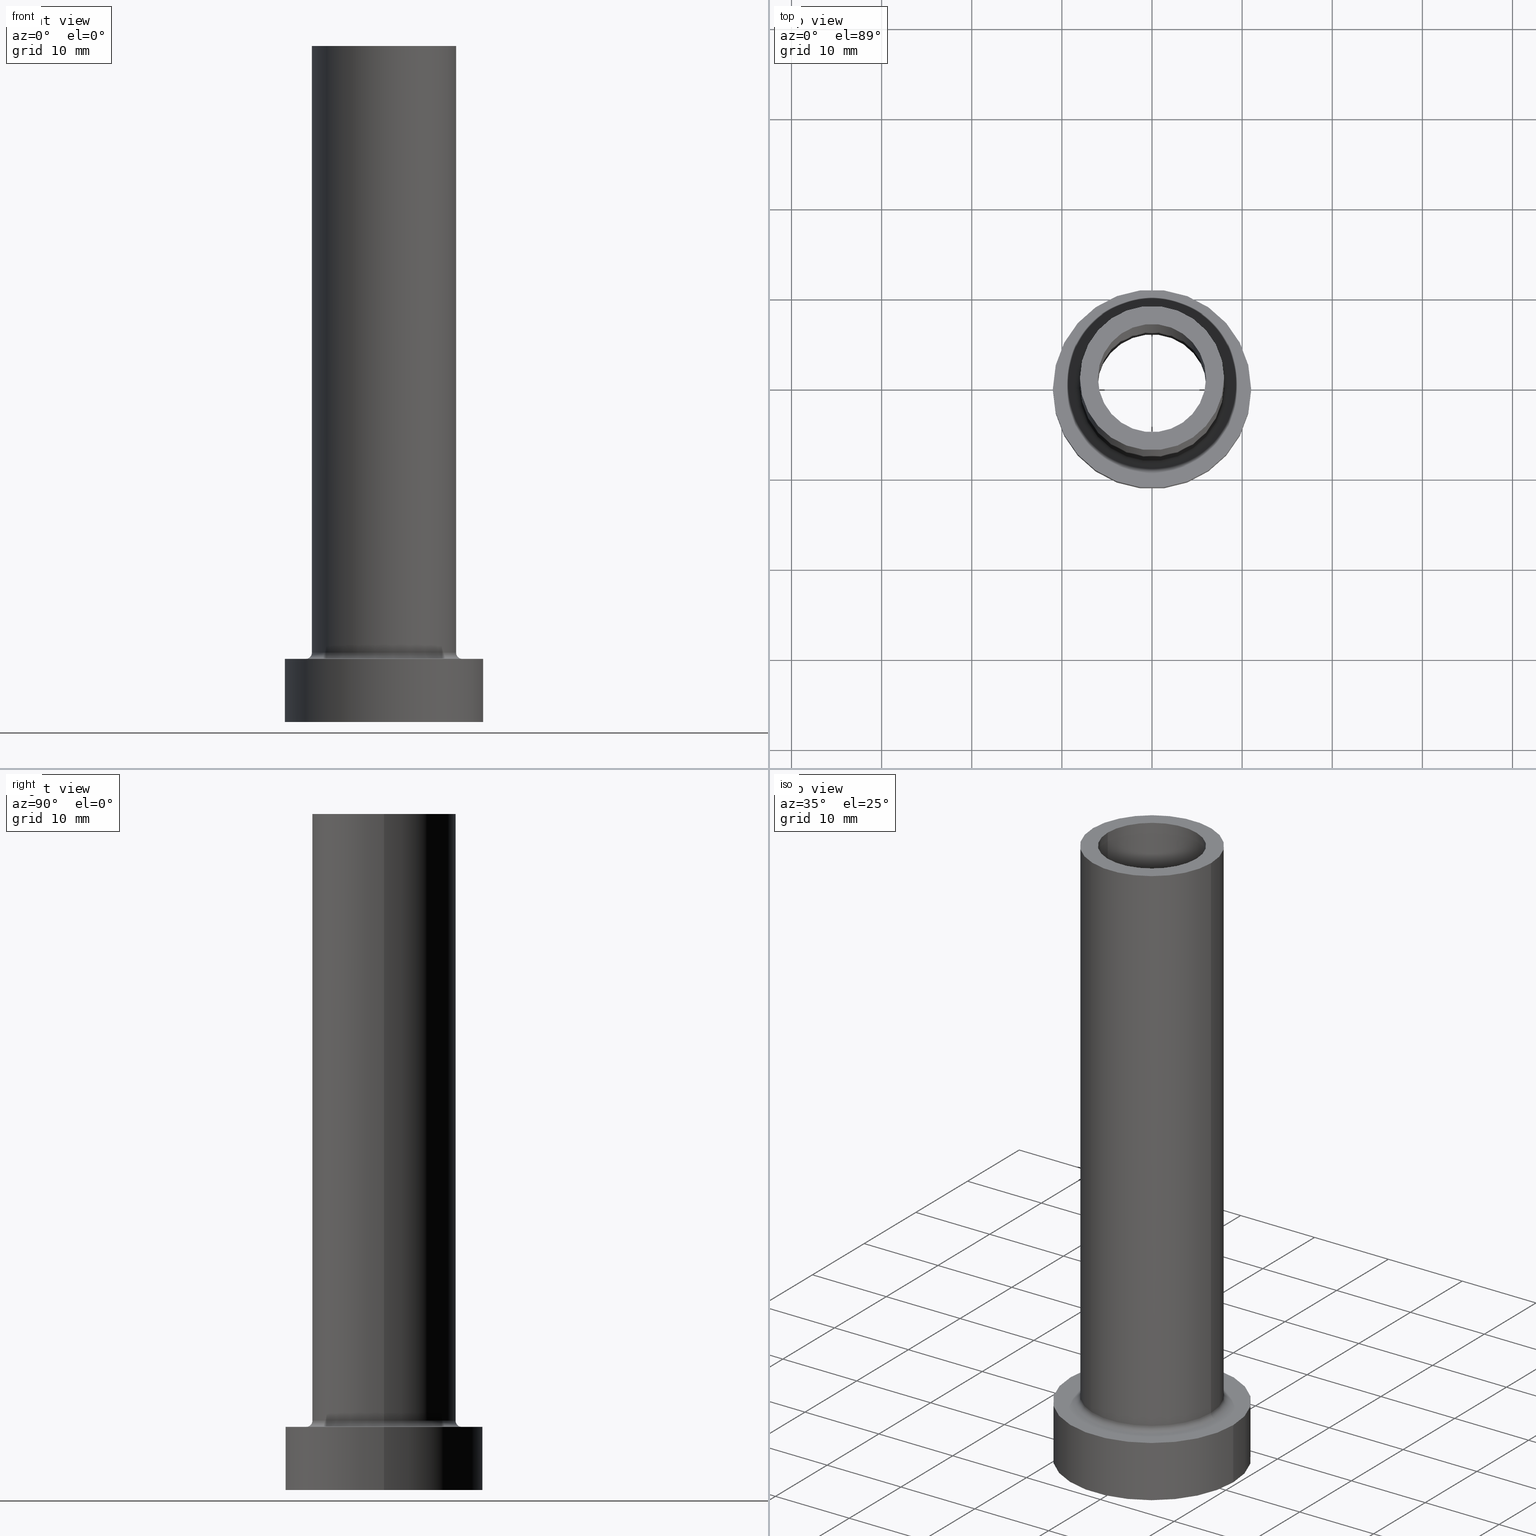
[diagram: canonical four-view strip — front | top / right | iso, engineering-drawing reading convention]
A machine part, canonical four-view strip (front | top / right | iso — engineering-drawing reading convention). The complete STEP part file that produces these views, byte-faithful:
ISO-10303-21;
HEADER;
FILE_DESCRIPTION (( 'STEP AP203' ),
    '1' );
FILE_NAME ('388b.STEP',
    '2023-02-13T09:09:16',
    ( '' ),
    ( '' ),
    'SwSTEP 2.0',
    'SolidWorks 2019',
    '' );
FILE_SCHEMA (( 'CONFIG_CONTROL_DESIGN' ));
ENDSEC;

DATA;
#1 = FACE_OUTER_BOUND ( 'NONE', #94, .T. ) ;
#2 = DIRECTION ( 'NONE',  ( 0.000000000000000000, 0.000000000000000000, 1.000000000000000000 ) ) ;
#3 = LOCAL_TIME ( 10, 9, 16.00000000000000000, #82 ) ;
#4 = CARTESIAN_POINT ( 'NONE',  ( 0.000000000000000000, 0.000000000000000000, 75.00000000000001421 ) ) ;
#5 = ADVANCED_FACE ( 'NONE', ( #203 ), #129, .T. ) ;
#6 = CLOSED_SHELL ( 'NONE', ( #361, #292, #395, #155, #5, #280, #20, #250, #79, #368, #174, #99, #85, #138 ) ) ;
#7 = CIRCLE ( 'NONE', #222, 6.150000000000000355 ) ;
#8 = SECURITY_CLASSIFICATION_LEVEL ( 'unclassified' ) ;
#9 = EDGE_LOOP ( 'NONE', ( #124, #411 ) ) ;
#10 = PRODUCT ( '388b', '388b', '', ( #120 ) ) ;
#11 = EDGE_LOOP ( 'NONE', ( #323, #55 ) ) ;
#12 = CC_DESIGN_PERSON_AND_ORGANIZATION_ASSIGNMENT ( #364, #252, ( #154 ) ) ;
#13 = DATE_AND_TIME ( #285, #56 ) ;
#14 = VECTOR ( 'NONE', #307, 1000.000000000000000 ) ;
#15 = ORIENTED_EDGE ( 'NONE', *, *, #137, .T. ) ;
#16 = AXIS2_PLACEMENT_3D ( 'NONE', #272, #172, #144 ) ;
#17 = PERSON_AND_ORGANIZATION ( #304, #435 ) ;
#18 = ORIENTED_EDGE ( 'NONE', *, *, #115, .F. ) ;
#19 = ORIENTED_EDGE ( 'NONE', *, *, #329, .T. ) ;
#20 = ADVANCED_FACE ( 'NONE', ( #50, #61 ), #159, .T. ) ;
#21 = DIRECTION ( 'NONE',  ( 1.000000000000000000, 0.000000000000000000, 0.000000000000000000 ) ) ;
#22 = AXIS2_PLACEMENT_3D ( 'NONE', #337, #27, #29 ) ;
#23 = ORIENTED_EDGE ( 'NONE', *, *, #169, .T. ) ;
#24 = CYLINDRICAL_SURFACE ( 'NONE', #44, 11.00000000000000000 ) ;
#25 = VERTEX_POINT ( 'NONE', #244 ) ;
#26 = DIRECTION ( 'NONE',  ( 0.000000000000000000, 0.000000000000000000, 1.000000000000000000 ) ) ;
#27 = DIRECTION ( 'NONE',  ( 0.000000000000000000, 0.000000000000000000, 1.000000000000000000 ) ) ;
#28 = DIRECTION ( 'NONE',  ( 1.000000000000000000, 0.000000000000000000, 0.000000000000000000 ) ) ;
#29 = DIRECTION ( 'NONE',  ( 1.000000000000000000, 0.000000000000000000, -0.000000000000000000 ) ) ;
#30 = CARTESIAN_POINT ( 'NONE',  ( -11.00000000000000000, 0.000000000000000000, 7.000000000000000000 ) ) ;
#31 = CIRCLE ( 'NONE', #80, 11.00000000000000000 ) ;
#32 = FACE_BOUND ( 'NONE', #291, .T. ) ;
#33 = CC_DESIGN_PERSON_AND_ORGANIZATION_ASSIGNMENT ( #186, #321, ( #320 ) ) ;
#34 = CARTESIAN_POINT ( 'NONE',  ( 0.000000000000000000, 0.000000000000000000, 7.699999999999998401 ) ) ;
#35 = DIRECTION ( 'NONE',  ( 1.000000000000000000, 0.000000000000000000, 0.000000000000000000 ) ) ;
#36 = APPLICATION_PROTOCOL_DEFINITION ( 'international standard', 'config_control_design', 1994, #354 ) ;
#37 = CARTESIAN_POINT ( 'NONE',  ( 11.00000000000000000, 1.347111479062088405E-15, 7.000000000000000000 ) ) ;
#38 =( GEOMETRIC_REPRESENTATION_CONTEXT ( 3 ) GLOBAL_UNCERTAINTY_ASSIGNED_CONTEXT ( ( #190 ) ) GLOBAL_UNIT_ASSIGNED_CONTEXT ( ( #240, #383, #67 ) ) REPRESENTATION_CONTEXT ( 'NONE', 'WORKASPACE' ) );
#39 = DIRECTION ( 'NONE',  ( 0.000000000000000000, 0.000000000000000000, -1.000000000000000000 ) ) ;
#40 = EDGE_CURVE ( 'NONE', #296, #78, #64, .T. ) ;
#41 = DIRECTION ( 'NONE',  ( 1.000000000000000000, 0.000000000000000000, 0.000000000000000000 ) ) ;
#42 = APPROVAL_ROLE ( '' ) ;
#43 = ORIENTED_EDGE ( 'NONE', *, *, #137, .F. ) ;
#44 = AXIS2_PLACEMENT_3D ( 'NONE', #297, #98, #238 ) ;
#45 = COORDINATED_UNIVERSAL_TIME_OFFSET ( 1, 0, .AHEAD. ) ;
#46 = CARTESIAN_POINT ( 'NONE',  ( 0.000000000000000000, 0.000000000000000000, 0.000000000000000000 ) ) ;
#47 = CIRCLE ( 'NONE', #266, 6.000000000000000888 ) ;
#48 = CC_DESIGN_SECURITY_CLASSIFICATION ( #320, ( #154 ) ) ;
#49 = DATE_TIME_ROLE ( 'classification_date' ) ;
#50 = FACE_BOUND ( 'NONE', #237, .T. ) ;
#51 = EDGE_CURVE ( 'NONE', #116, #375, #47, .T. ) ;
#52 = DIRECTION ( 'NONE',  ( 1.000000000000000000, 0.000000000000000000, -0.000000000000000000 ) ) ;
#53 = ORIENTED_EDGE ( 'NONE', *, *, #128, .T. ) ;
#54 = DIRECTION ( 'NONE',  ( 1.000000000000000000, 0.000000000000000000, 0.000000000000000000 ) ) ;
#55 = ORIENTED_EDGE ( 'NONE', *, *, #51, .F. ) ;
#56 = LOCAL_TIME ( 10, 9, 16.00000000000000000, #146 ) ;
#57 = DIRECTION ( 'NONE',  ( 0.000000000000000000, 0.000000000000000000, -1.000000000000000000 ) ) ;
#58 = CC_DESIGN_PERSON_AND_ORGANIZATION_ASSIGNMENT ( #404, #150, ( #92 ) ) ;
#59 = VERTEX_POINT ( 'NONE', #418 ) ;
#60 = CARTESIAN_POINT ( 'NONE',  ( 8.699999999999999289, 0.000000000000000000, 6.999999999999999112 ) ) ;
#61 = FACE_OUTER_BOUND ( 'NONE', #195, .T. ) ;
#62 = LINE ( 'NONE', #132, #148 ) ;
#63 = AXIS2_PLACEMENT_3D ( 'NONE', #263, #199, #340 ) ;
#64 = LINE ( 'NONE', #104, #14 ) ;
#65 = AXIS2_PLACEMENT_3D ( 'NONE', #339, #26, #372 ) ;
#66 = DIRECTION ( 'NONE',  ( -0.000000000000000000, -0.000000000000000000, -1.000000000000000000 ) ) ;
#67 =( NAMED_UNIT ( * ) SI_UNIT ( $, .STERADIAN. ) SOLID_ANGLE_UNIT ( ) );
#68 = CARTESIAN_POINT ( 'NONE',  ( 0.000000000000000000, 0.000000000000000000, 0.000000000000000000 ) ) ;
#69 = FACE_BOUND ( 'NONE', #11, .T. ) ;
#70 = CARTESIAN_POINT ( 'NONE',  ( 0.000000000000000000, 0.000000000000000000, 47.39482681718908452 ) ) ;
#71 = AXIS2_PLACEMENT_3D ( 'NONE', #278, #344, #456 ) ;
#72 = DIRECTION ( 'NONE',  ( 0.000000000000000000, 0.000000000000000000, 1.000000000000000000 ) ) ;
#73 = AXIS2_PLACEMENT_3D ( 'NONE', #248, #457, #212 ) ;
#74 = EDGE_CURVE ( 'NONE', #151, #409, #109, .T. ) ;
#75 = PLANE ( 'NONE',  #253 ) ;
#76 = ORIENTED_EDGE ( 'NONE', *, *, #430, .T. ) ;
#77 = APPROVAL_STATUS ( 'not_yet_approved' ) ;
#78 = VERTEX_POINT ( 'NONE', #141 ) ;
#79 = ADVANCED_FACE ( 'NONE', ( #207 ), #143, .T. ) ;
#80 = AXIS2_PLACEMENT_3D ( 'NONE', #454, #258, #167 ) ;
#81 = LOCAL_TIME ( 10, 9, 16.00000000000000000, #325 ) ;
#82 = COORDINATED_UNIVERSAL_TIME_OFFSET ( 1, 0, .AHEAD. ) ;
#83 = PERSON_AND_ORGANIZATION_ROLE ( 'design_owner' ) ;
#84 = APPROVAL_ROLE ( '' ) ;
#85 = ADVANCED_FACE ( 'NONE', ( #32, #136 ), #461, .F. ) ;
#86 = ORIENTED_EDGE ( 'NONE', *, *, #40, .T. ) ;
#87 = AXIS2_PLACEMENT_3D ( 'NONE', #448, #204, #270 ) ;
#88 = CARTESIAN_POINT ( 'NONE',  ( -8.699999999999999289, 1.065442715258197248E-15, 7.699999999999998401 ) ) ;
#89 = ORIENTED_EDGE ( 'NONE', *, *, #423, .F. ) ;
#90 = FACE_BOUND ( 'NONE', #9, .T. ) ;
#91 = ORIENTED_EDGE ( 'NONE', *, *, #259, .T. ) ;
#92 = PRODUCT_DEFINITION ( 'NEZN�M�', '', #154, #338 ) ;
#93 = DIRECTION ( 'NONE',  ( 0.000000000000000000, 0.000000000000000000, -1.000000000000000000 ) ) ;
#94 = EDGE_LOOP ( 'NONE', ( #192, #131, #332, #427 ) ) ;
#95 = APPROVAL_PERSON_ORGANIZATION ( #356, #101, #288 ) ;
#96 = FACE_OUTER_BOUND ( 'NONE', #360, .T. ) ;
#97 = ORIENTED_EDGE ( 'NONE', *, *, #377, .T. ) ;
#98 = DIRECTION ( 'NONE',  ( -0.000000000000000000, -0.000000000000000000, -1.000000000000000000 ) ) ;
#99 = ADVANCED_FACE ( 'NONE', ( #315 ), #350, .F. ) ;
#100 = DIRECTION ( 'NONE',  ( 0.000000000000000000, 0.000000000000000000, 1.000000000000000000 ) ) ;
#101 = APPROVAL ( #429, 'NEUR�EN�' ) ;
#102 = CARTESIAN_POINT ( 'NONE',  ( 0.000000000000000000, 0.000000000000000000, 7.699999999999998401 ) ) ;
#103 = EDGE_CURVE ( 'NONE', #365, #25, #311, .T. ) ;
#104 = CARTESIAN_POINT ( 'NONE',  ( -11.00000000000000000, 0.000000000000000000, 7.000000000000000000 ) ) ;
#105 = DIRECTION ( 'NONE',  ( -0.000000000000000000, -0.000000000000000000, -1.000000000000000000 ) ) ;
#106 = AXIS2_PLACEMENT_3D ( 'NONE', #202, #93, #299 ) ;
#107 = CARTESIAN_POINT ( 'NONE',  ( 11.00000000000000000, 1.347111479062088405E-15, 7.000000000000000000 ) ) ;
#108 = DIRECTION ( 'NONE',  ( 0.000000000000000000, 0.000000000000000000, 1.000000000000000000 ) ) ;
#109 = LINE ( 'NONE', #107, #387 ) ;
#110 = DIRECTION ( 'NONE',  ( 0.000000000000000000, 0.000000000000000000, 1.000000000000000000 ) ) ;
#111 = CC_DESIGN_DATE_AND_TIME_ASSIGNMENT ( #114, #49, ( #320 ) ) ;
#112 = CARTESIAN_POINT ( 'NONE',  ( 8.699999999999999289, 0.000000000000000000, 7.699999999999998401 ) ) ;
#113 = ORIENTED_EDGE ( 'NONE', *, *, #377, .F. ) ;
#114 = DATE_AND_TIME ( #400, #3 ) ;
#115 = EDGE_CURVE ( 'NONE', #409, #78, #301, .T. ) ;
#116 = VERTEX_POINT ( 'NONE', #382 ) ;
#117 = EDGE_CURVE ( 'NONE', #158, #59, #184, .T. ) ;
#118 = PERSON_AND_ORGANIZATION ( #304, #435 ) ;
#119 = CC_DESIGN_APPROVAL ( #228, ( #320 ) ) ;
#120 = MECHANICAL_CONTEXT ( 'NONE', #354, 'mechanical' ) ;
#121 = EDGE_CURVE ( 'NONE', #265, #355, #389, .T. ) ;
#122 = ORIENTED_EDGE ( 'NONE', *, *, #218, .T. ) ;
#123 = CARTESIAN_POINT ( 'NONE',  ( 0.000000000000000000, 0.000000000000000000, 30.00000000000001421 ) ) ;
#124 = ORIENTED_EDGE ( 'NONE', *, *, #460, .F. ) ;
#125 = AXIS2_PLACEMENT_3D ( 'NONE', #313, #168, #424 ) ;
#126 = AXIS2_PLACEMENT_3D ( 'NONE', #102, #110, #312 ) ;
#127 = CARTESIAN_POINT ( 'NONE',  ( 0.000000000000000000, 0.000000000000000000, 7.000000000000000000 ) ) ;
#128 = EDGE_CURVE ( 'NONE', #433, #232, #135, .T. ) ;
#129 = CYLINDRICAL_SURFACE ( 'NONE', #63, 11.00000000000000000 ) ;
#130 = CARTESIAN_POINT ( 'NONE',  ( 8.000000000000000000, 9.797174393178825657E-16, 75.00000000000001421 ) ) ;
#131 = ORIENTED_EDGE ( 'NONE', *, *, #423, .T. ) ;
#132 = CARTESIAN_POINT ( 'NONE',  ( -6.150000000000000355, 0.000000000000000000, 47.39482681718908452 ) ) ;
#133 = AXIS2_PLACEMENT_3D ( 'NONE', #275, #210, #241 ) ;
#134 = ORIENTED_EDGE ( 'NONE', *, *, #121, .T. ) ;
#135 = CIRCLE ( 'NONE', #226, 8.000000000000000000 ) ;
#136 = FACE_OUTER_BOUND ( 'NONE', #326, .T. ) ;
#137 = EDGE_CURVE ( 'NONE', #296, #151, #208, .T. ) ;
#138 = ADVANCED_FACE ( 'NONE', ( #310 ), #246, .F. ) ;
#139 = DIRECTION ( 'NONE',  ( 0.000000000000000000, 0.000000000000000000, 1.000000000000000000 ) ) ;
#140 = CARTESIAN_POINT ( 'NONE',  ( 0.000000000000000000, 0.000000000000000000, 7.699999999999998401 ) ) ;
#141 = CARTESIAN_POINT ( 'NONE',  ( -11.00000000000000000, 0.000000000000000000, 0.000000000000000000 ) ) ;
#142 = AXIS2_PLACEMENT_3D ( 'NONE', #426, #72, #41 ) ;
#143 = CYLINDRICAL_SURFACE ( 'NONE', #71, 8.000000000000000000 ) ;
#144 = DIRECTION ( 'NONE',  ( -1.000000000000000000, 0.000000000000000000, 0.000000000000000000 ) ) ;
#145 = DIRECTION ( 'NONE',  ( 1.000000000000000000, 0.000000000000000000, 0.000000000000000000 ) ) ;
#146 = COORDINATED_UNIVERSAL_TIME_OFFSET ( 1, 0, .AHEAD. ) ;
#147 = CIRCLE ( 'NONE', #142, 8.000000000000000000 ) ;
#148 = VECTOR ( 'NONE', #57, 1000.000000000000000 ) ;
#149 = EDGE_LOOP ( 'NONE', ( #300, #18 ) ) ;
#150 = PERSON_AND_ORGANIZATION_ROLE ( 'creator' ) ;
#151 = VERTEX_POINT ( 'NONE', #37 ) ;
#152 = APPROVAL_DATE_TIME ( #432, #101 ) ;
#153 = ORIENTED_EDGE ( 'NONE', *, *, #306, .F. ) ;
#154 = PRODUCT_DEFINITION_FORMATION_WITH_SPECIFIED_SOURCE ( 'LIBOVOLN�', '', #10, .NOT_KNOWN. ) ;
#155 = ADVANCED_FACE ( 'NONE', ( #303 ), #369, .T. ) ;
#156 = COORDINATED_UNIVERSAL_TIME_OFFSET ( 1, 0, .AHEAD. ) ;
#157 = EDGE_CURVE ( 'NONE', #78, #409, #31, .T. ) ;
#158 = VERTEX_POINT ( 'NONE', #196 ) ;
#159 = PLANE ( 'NONE',  #22 ) ;
#160 = LINE ( 'NONE', #341, #178 ) ;
#161 = EDGE_LOOP ( 'NONE', ( #370, #439, #257, #397 ) ) ;
#162 = CIRCLE ( 'NONE', #415, 0.7000000000000000666 ) ;
#163 = FACE_OUTER_BOUND ( 'NONE', #405, .T. ) ;
#164 = EDGE_LOOP ( 'NONE', ( #268, #449, #189, #319 ) ) ;
#165 = CARTESIAN_POINT ( 'NONE',  ( 6.000000000000000888, 7.347880794884119736E-16, 30.00000000000001421 ) ) ;
#166 = VERTEX_POINT ( 'NONE', #60 ) ;
#167 = DIRECTION ( 'NONE',  ( 1.000000000000000000, 0.000000000000000000, 0.000000000000000000 ) ) ;
#168 = DIRECTION ( 'NONE',  ( 0.000000000000000000, 0.000000000000000000, 1.000000000000000000 ) ) ;
#169 = EDGE_CURVE ( 'NONE', #232, #265, #331, .T. ) ;
#170 = DIRECTION ( 'NONE',  ( 0.000000000000000000, 0.000000000000000000, 1.000000000000000000 ) ) ;
#171 = DIRECTION ( 'NONE',  ( 0.000000000000000000, 0.000000000000000000, -1.000000000000000000 ) ) ;
#172 = DIRECTION ( 'NONE',  ( 0.000000000000000000, 0.000000000000000000, -1.000000000000000000 ) ) ;
#173 = CARTESIAN_POINT ( 'NONE',  ( 0.000000000000000000, 0.000000000000000000, 75.00000000000001421 ) ) ;
#174 = ADVANCED_FACE ( 'NONE', ( #163 ), #390, .F. ) ;
#175 = CARTESIAN_POINT ( 'NONE',  ( 0.000000000000000000, 0.000000000000000000, 75.00000000000001421 ) ) ;
#176 = APPROVAL ( #77, 'NEUR�EN�' ) ;
#177 = PRODUCT_DEFINITION_SHAPE ( 'NONE', 'NONE',  #92 ) ;
#178 = VECTOR ( 'NONE', #446, 1000.000000000000000 ) ;
#179 = DIRECTION ( 'NONE',  ( -0.000000000000000000, -0.000000000000000000, -1.000000000000000000 ) ) ;
#180 = VECTOR ( 'NONE', #39, 1000.000000000000000 ) ;
#181 = DIRECTION ( 'NONE',  ( 1.000000000000000000, 0.000000000000000000, 0.000000000000000000 ) ) ;
#182 = FACE_OUTER_BOUND ( 'NONE', #357, .T. ) ;
#183 = LINE ( 'NONE', #317, #428 ) ;
#184 = CIRCLE ( 'NONE', #442, 6.150000000000000355 ) ;
#185 = EDGE_CURVE ( 'NONE', #151, #296, #381, .T. ) ;
#186 = PERSON_AND_ORGANIZATION ( #304, #435 ) ;
#187 = AXIS2_PLACEMENT_3D ( 'NONE', #206, #450, #21 ) ;
#188 = CIRCLE ( 'NONE', #73, 6.150000000000000355 ) ;
#189 = ORIENTED_EDGE ( 'NONE', *, *, #115, .T. ) ;
#190 = UNCERTAINTY_MEASURE_WITH_UNIT (LENGTH_MEASURE( 1.000000000000000082E-05 ), #240, 'distance_accuracy_value', 'NONE');
#191 = DIRECTION ( 'NONE',  ( 0.000000000000000000, 0.000000000000000000, 1.000000000000000000 ) ) ;
#192 = ORIENTED_EDGE ( 'NONE', *, *, #453, .T. ) ;
#193 = APPLICATION_PROTOCOL_DEFINITION ( 'international standard', 'config_control_design', 1994, #380 ) ;
#194 = AXIS2_PLACEMENT_3D ( 'NONE', #46, #191, #436 ) ;
#195 = EDGE_LOOP ( 'NONE', ( #15, #403 ) ) ;
#196 = CARTESIAN_POINT ( 'NONE',  ( 6.150000000000000355, 7.531577814756220092E-16, 0.000000000000000000 ) ) ;
#197 = ORIENTED_EDGE ( 'NONE', *, *, #157, .T. ) ;
#198 = PLANE ( 'NONE',  #398 ) ;
#199 = DIRECTION ( 'NONE',  ( -0.000000000000000000, -0.000000000000000000, -1.000000000000000000 ) ) ;
#200 = AXIS2_PLACEMENT_3D ( 'NONE', #123, #417, #28 ) ;
#201 = CC_DESIGN_APPROVAL ( #176, ( #154 ) ) ;
#202 = CARTESIAN_POINT ( 'NONE',  ( 0.000000000000000000, 0.000000000000000000, 47.39482681718908452 ) ) ;
#203 = FACE_OUTER_BOUND ( 'NONE', #164, .T. ) ;
#204 = DIRECTION ( 'NONE',  ( 0.000000000000000000, 0.000000000000000000, 1.000000000000000000 ) ) ;
#205 = EDGE_LOOP ( 'NONE', ( #89, #441, #219, #153 ) ) ;
#206 = CARTESIAN_POINT ( 'NONE',  ( 0.000000000000000000, 0.000000000000000000, 7.000000000000000000 ) ) ;
#207 = FACE_OUTER_BOUND ( 'NONE', #363, .T. ) ;
#208 = CIRCLE ( 'NONE', #125, 11.00000000000000000 ) ;
#209 = AXIS2_PLACEMENT_3D ( 'NONE', #88, #376, #229 ) ;
#210 = DIRECTION ( 'NONE',  ( 0.000000000000000000, 0.000000000000000000, 1.000000000000000000 ) ) ;
#211 = EDGE_CURVE ( 'NONE', #375, #293, #160, .T. ) ;
#212 = DIRECTION ( 'NONE',  ( 1.000000000000000000, 0.000000000000000000, 0.000000000000000000 ) ) ;
#213 = CARTESIAN_POINT ( 'NONE',  ( 0.000000000000000000, 0.000000000000000000, 0.000000000000000000 ) ) ;
#214 = DIRECTION ( 'NONE',  ( 1.000000000000000000, 0.000000000000000000, -0.000000000000000000 ) ) ;
#215 = DIRECTION ( 'NONE',  ( 0.000000000000000000, 0.000000000000000000, -1.000000000000000000 ) ) ;
#216 = DIRECTION ( 'NONE',  ( 1.000000000000000000, 0.000000000000000000, 0.000000000000000000 ) ) ;
#217 = DIRECTION ( 'NONE',  ( 0.000000000000000000, 0.000000000000000000, -1.000000000000000000 ) ) ;
#218 = EDGE_CURVE ( 'NONE', #451, #166, #444, .T. ) ;
#219 = ORIENTED_EDGE ( 'NONE', *, *, #211, .T. ) ;
#220 = PERSON_AND_ORGANIZATION ( #304, #435 ) ;
#221 = ORIENTED_EDGE ( 'NONE', *, *, #74, .F. ) ;
#222 = AXIS2_PLACEMENT_3D ( 'NONE', #236, #170, #305 ) ;
#223 = ORIENTED_EDGE ( 'NONE', *, *, #169, .F. ) ;
#224 = APPROVAL_DATE_TIME ( #13, #228 ) ;
#225 = CALENDAR_DATE ( 2023, 13, 2 ) ;
#226 = AXIS2_PLACEMENT_3D ( 'NONE', #175, #100, #351 ) ;
#227 = ORIENTED_EDGE ( 'NONE', *, *, #408, .F. ) ;
#228 = APPROVAL ( #290, 'NEUR�EN�' ) ;
#229 = DIRECTION ( 'NONE',  ( -1.000000000000000000, 1.224646799147353207E-16, 0.000000000000000000 ) ) ;
#230 = ORIENTED_EDGE ( 'NONE', *, *, #308, .F. ) ;
#231 = FACE_OUTER_BOUND ( 'NONE', #149, .T. ) ;
#232 = VERTEX_POINT ( 'NONE', #130 ) ;
#233 = CARTESIAN_POINT ( 'NONE',  ( -6.000000000000000888, 0.000000000000000000, 30.00000000000001421 ) ) ;
#234 = ORIENTED_EDGE ( 'NONE', *, *, #121, .F. ) ;
#235 = CIRCLE ( 'NONE', #200, 6.000000000000000888 ) ;
#236 = CARTESIAN_POINT ( 'NONE',  ( 0.000000000000000000, 0.000000000000000000, 30.00000000000001421 ) ) ;
#237 = EDGE_LOOP ( 'NONE', ( #97, #122 ) ) ;
#238 = DIRECTION ( 'NONE',  ( -1.000000000000000000, 0.000000000000000000, 0.000000000000000000 ) ) ;
#239 = DIRECTION ( 'NONE',  ( -1.000000000000000000, 0.000000000000000000, 0.000000000000000000 ) ) ;
#240 =( LENGTH_UNIT ( ) NAMED_UNIT ( * ) SI_UNIT ( .MILLI., .METRE. ) );
#241 = DIRECTION ( 'NONE',  ( 1.000000000000000000, 0.000000000000000000, -0.000000000000000000 ) ) ;
#242 = AXIS2_PLACEMENT_3D ( 'NONE', #262, #294, #374 ) ;
#243 = DIRECTION ( 'NONE',  ( 1.000000000000000000, 0.000000000000000000, 0.000000000000000000 ) ) ;
#244 = CARTESIAN_POINT ( 'NONE',  ( -6.150000000000000355, 0.000000000000000000, 30.00000000000001421 ) ) ;
#245 = CARTESIAN_POINT ( 'NONE',  ( -6.000000000000000888, 0.000000000000000000, 75.00000000000001421 ) ) ;
#246 = CYLINDRICAL_SURFACE ( 'NONE', #283, 6.000000000000000888 ) ;
#247 = FACE_OUTER_BOUND ( 'NONE', #256, .T. ) ;
#248 = CARTESIAN_POINT ( 'NONE',  ( 0.000000000000000000, 0.000000000000000000, 0.000000000000000000 ) ) ;
#249 = CIRCLE ( 'NONE', #126, 8.000000000000000000 ) ;
#250 = ADVANCED_FACE ( 'NONE', ( #90, #231 ), #198, .F. ) ;
#251 = ORIENTED_EDGE ( 'NONE', *, *, #286, .F. ) ;
#252 = PERSON_AND_ORGANIZATION_ROLE ( 'design_supplier' ) ;
#253 = AXIS2_PLACEMENT_3D ( 'NONE', #349, #388, #214 ) ;
#254 = ORIENTED_EDGE ( 'NONE', *, *, #286, .T. ) ;
#255 = CALENDAR_DATE ( 2023, 13, 2 ) ;
#256 = EDGE_LOOP ( 'NONE', ( #53, #443 ) ) ;
#257 = ORIENTED_EDGE ( 'NONE', *, *, #308, .T. ) ;
#258 = DIRECTION ( 'NONE',  ( 0.000000000000000000, 0.000000000000000000, 1.000000000000000000 ) ) ;
#259 = EDGE_CURVE ( 'NONE', #293, #328, #235, .T. ) ;
#260 = APPROVAL_PERSON_ORGANIZATION ( #17, #176, #84 ) ;
#261 = ORIENTED_EDGE ( 'NONE', *, *, #379, .F. ) ;
#262 = CARTESIAN_POINT ( 'NONE',  ( 0.000000000000000000, 0.000000000000000000, 75.00000000000001421 ) ) ;
#263 = CARTESIAN_POINT ( 'NONE',  ( 0.000000000000000000, 0.000000000000000000, 7.000000000000000000 ) ) ;
#264 = CARTESIAN_POINT ( 'NONE',  ( 8.000000000000000000, 9.797174393178825657E-16, 75.00000000000001421 ) ) ;
#265 = VERTEX_POINT ( 'NONE', #412 ) ;
#266 = AXIS2_PLACEMENT_3D ( 'NONE', #173, #378, #181 ) ;
#267 = DIRECTION ( 'NONE',  ( -0.000000000000000000, -0.000000000000000000, -1.000000000000000000 ) ) ;
#268 = ORIENTED_EDGE ( 'NONE', *, *, #185, .F. ) ;
#269 = VECTOR ( 'NONE', #179, 1000.000000000000000 ) ;
#270 = DIRECTION ( 'NONE',  ( 1.000000000000000000, 0.000000000000000000, 0.000000000000000000 ) ) ;
#271 = CARTESIAN_POINT ( 'NONE',  ( 0.000000000000000000, 0.000000000000000000, 75.00000000000001421 ) ) ;
#272 = CARTESIAN_POINT ( 'NONE',  ( 0.000000000000000000, 0.000000000000000000, 75.00000000000001421 ) ) ;
#273 = DIRECTION ( 'NONE',  ( 1.000000000000000000, 0.000000000000000000, 0.000000000000000000 ) ) ;
#274 = CARTESIAN_POINT ( 'NONE',  ( -8.000000000000000000, 0.000000000000000000, 75.00000000000001421 ) ) ;
#275 = CARTESIAN_POINT ( 'NONE',  ( 0.000000000000000000, 0.000000000000000000, 30.00000000000001421 ) ) ;
#276 = LOCAL_TIME ( 10, 9, 16.00000000000000000, #45 ) ;
#277 = CARTESIAN_POINT ( 'NONE',  ( 11.00000000000000000, 1.347111479062088405E-15, 0.000000000000000000 ) ) ;
#278 = CARTESIAN_POINT ( 'NONE',  ( 0.000000000000000000, 0.000000000000000000, 75.00000000000001421 ) ) ;
#279 = CARTESIAN_POINT ( 'NONE',  ( 6.150000000000000355, 7.531577814756220092E-16, 30.00000000000001421 ) ) ;
#280 = ADVANCED_FACE ( 'NONE', ( #302 ), #24, .T. ) ;
#281 = DIRECTION ( 'NONE',  ( 0.000000000000000000, -1.000000000000000000, 0.000000000000000000 ) ) ;
#282 = AXIS2_PLACEMENT_3D ( 'NONE', #127, #267, #54 ) ;
#283 = AXIS2_PLACEMENT_3D ( 'NONE', #271, #215, #239 ) ;
#284 = ORIENTED_EDGE ( 'NONE', *, *, #346, .T. ) ;
#285 = CALENDAR_DATE ( 2023, 13, 2 ) ;
#286 = EDGE_CURVE ( 'NONE', #355, #451, #358, .T. ) ;
#287 = DATE_AND_TIME ( #225, #335 ) ;
#288 = APPROVAL_ROLE ( '' ) ;
#289 = EDGE_LOOP ( 'NONE', ( #261, #23, #134, #342 ) ) ;
#290 = APPROVAL_STATUS ( 'not_yet_approved' ) ;
#291 = EDGE_LOOP ( 'NONE', ( #91, #447 ) ) ;
#292 = ADVANCED_FACE ( 'NONE', ( #96 ), #343, .F. ) ;
#293 = VERTEX_POINT ( 'NONE', #233 ) ;
#294 = DIRECTION ( 'NONE',  ( -0.000000000000000000, -0.000000000000000000, -1.000000000000000000 ) ) ;
#295 = AXIS2_PLACEMENT_3D ( 'NONE', #140, #309, #216 ) ;
#296 = VERTEX_POINT ( 'NONE', #30 ) ;
#297 = CARTESIAN_POINT ( 'NONE',  ( 0.000000000000000000, 0.000000000000000000, 7.000000000000000000 ) ) ;
#298 = ORIENTED_EDGE ( 'NONE', *, *, #346, .F. ) ;
#299 = DIRECTION ( 'NONE',  ( -1.000000000000000000, 0.000000000000000000, 0.000000000000000000 ) ) ;
#300 = ORIENTED_EDGE ( 'NONE', *, *, #157, .F. ) ;
#301 = CIRCLE ( 'NONE', #362, 11.00000000000000000 ) ;
#302 = FACE_OUTER_BOUND ( 'NONE', #413, .T. ) ;
#303 = FACE_OUTER_BOUND ( 'NONE', #289, .T. ) ;
#304 = PERSON ( 'NEUR�EN�', 'NEUR�EN�', 'NEUR�EN�', ('NEUR�EN�'), ('NEUR�EN�'), ('NEUR�EN�') ) ;
#305 = DIRECTION ( 'NONE',  ( 1.000000000000000000, 0.000000000000000000, 0.000000000000000000 ) ) ;
#306 = EDGE_CURVE ( 'NONE', #328, #293, #399, .T. ) ;
#307 = DIRECTION ( 'NONE',  ( -0.000000000000000000, -0.000000000000000000, -1.000000000000000000 ) ) ;
#308 = EDGE_CURVE ( 'NONE', #25, #59, #62, .T. ) ;
#309 = DIRECTION ( 'NONE',  ( 0.000000000000000000, 0.000000000000000000, 1.000000000000000000 ) ) ;
#310 = FACE_OUTER_BOUND ( 'NONE', #205, .T. ) ;
#311 = CIRCLE ( 'NONE', #371, 6.150000000000000355 ) ;
#312 = DIRECTION ( 'NONE',  ( 1.000000000000000000, 0.000000000000000000, 0.000000000000000000 ) ) ;
#313 = CARTESIAN_POINT ( 'NONE',  ( 0.000000000000000000, 0.000000000000000000, 7.000000000000000000 ) ) ;
#314 = CIRCLE ( 'NONE', #327, 6.000000000000000888 ) ;
#315 = FACE_OUTER_BOUND ( 'NONE', #161, .T. ) ;
#316 = CC_DESIGN_PERSON_AND_ORGANIZATION_ASSIGNMENT ( #402, #83, ( #10 ) ) ;
#317 = CARTESIAN_POINT ( 'NONE',  ( 6.000000000000000888, 7.347880794884119736E-16, 75.00000000000001421 ) ) ;
#318 = SHAPE_DEFINITION_REPRESENTATION ( #177, #438 ) ;
#319 = ORIENTED_EDGE ( 'NONE', *, *, #40, .F. ) ;
#320 = SECURITY_CLASSIFICATION ( '', '', #8 ) ;
#321 = PERSON_AND_ORGANIZATION_ROLE ( 'classification_officer' ) ;
#322 = PRODUCT_RELATED_PRODUCT_CATEGORY ( 'detail', '', ( #10 ) ) ;
#323 = ORIENTED_EDGE ( 'NONE', *, *, #453, .F. ) ;
#324 = PERSON_AND_ORGANIZATION_ROLE ( 'creator' ) ;
#325 = COORDINATED_UNIVERSAL_TIME_OFFSET ( 1, 0, .AHEAD. ) ;
#326 = EDGE_LOOP ( 'NONE', ( #367, #416 ) ) ;
#327 = AXIS2_PLACEMENT_3D ( 'NONE', #4, #108, #145 ) ;
#328 = VERTEX_POINT ( 'NONE', #165 ) ;
#329 = EDGE_CURVE ( 'NONE', #25, #365, #7, .T. ) ;
#330 = ORIENTED_EDGE ( 'NONE', *, *, #117, .T. ) ;
#331 = LINE ( 'NONE', #264, #334 ) ;
#332 = ORIENTED_EDGE ( 'NONE', *, *, #259, .F. ) ;
#333 = DIRECTION ( 'NONE',  ( 0.000000000000000000, 0.000000000000000000, 1.000000000000000000 ) ) ;
#334 = VECTOR ( 'NONE', #410, 1000.000000000000000 ) ;
#335 = LOCAL_TIME ( 10, 9, 16.00000000000000000, #156 ) ;
#336 = EDGE_CURVE ( 'NONE', #365, #158, #407, .T. ) ;
#337 = CARTESIAN_POINT ( 'NONE',  ( 0.000000000000000000, 0.000000000000000000, 7.000000000000000000 ) ) ;
#338 = DESIGN_CONTEXT ( 'detailed design', #380, 'design' ) ;
#339 = CARTESIAN_POINT ( 'NONE',  ( 0.000000000000000000, 0.000000000000000000, 30.00000000000001421 ) ) ;
#340 = DIRECTION ( 'NONE',  ( -1.000000000000000000, 0.000000000000000000, 0.000000000000000000 ) ) ;
#341 = CARTESIAN_POINT ( 'NONE',  ( -6.000000000000000888, 0.000000000000000000, 75.00000000000001421 ) ) ;
#342 = ORIENTED_EDGE ( 'NONE', *, *, #430, .F. ) ;
#343 = CYLINDRICAL_SURFACE ( 'NONE', #106, 6.150000000000000355 ) ;
#344 = DIRECTION ( 'NONE',  ( -0.000000000000000000, -0.000000000000000000, -1.000000000000000000 ) ) ;
#345 = CIRCLE ( 'NONE', #445, 8.699999999999999289 ) ;
#346 = EDGE_CURVE ( 'NONE', #265, #166, #162, .T. ) ;
#347 = CYLINDRICAL_SURFACE ( 'NONE', #16, 6.000000000000000888 ) ;
#348 = DIRECTION ( 'NONE',  ( 1.000000000000000000, 0.000000000000000000, 0.000000000000000000 ) ) ;
#349 = CARTESIAN_POINT ( 'NONE',  ( 0.000000000000000000, 0.000000000000000000, 75.00000000000001421 ) ) ;
#350 = CYLINDRICAL_SURFACE ( 'NONE', #452, 6.150000000000000355 ) ;
#351 = DIRECTION ( 'NONE',  ( 1.000000000000000000, 0.000000000000000000, 0.000000000000000000 ) ) ;
#352 = CARTESIAN_POINT ( 'NONE',  ( -8.699999999999999289, 1.065442715258197248E-15, 6.999999999999999112 ) ) ;
#353 = CARTESIAN_POINT ( 'NONE',  ( -8.000000000000000000, 0.000000000000000000, 7.699999999999998401 ) ) ;
#354 = APPLICATION_CONTEXT ( 'configuration controlled 3d designs of mechanical parts and assemblies' ) ;
#355 = VERTEX_POINT ( 'NONE', #353 ) ;
#356 = PERSON_AND_ORGANIZATION ( #304, #435 ) ;
#357 = EDGE_LOOP ( 'NONE', ( #227, #254, #113, #298 ) ) ;
#358 = CIRCLE ( 'NONE', #209, 0.6999999999999992895 ) ;
#359 = APPROVAL_DATE_TIME ( #287, #176 ) ;
#360 = EDGE_LOOP ( 'NONE', ( #19, #396, #330, #230 ) ) ;
#361 = ADVANCED_FACE ( 'NONE', ( #1 ), #347, .F. ) ;
#362 = AXIS2_PLACEMENT_3D ( 'NONE', #68, #420, #385 ) ;
#363 = EDGE_LOOP ( 'NONE', ( #223, #431, #76, #373 ) ) ;
#364 = PERSON_AND_ORGANIZATION ( #304, #435 ) ;
#365 = VERTEX_POINT ( 'NONE', #279 ) ;
#366 = CARTESIAN_POINT ( 'NONE',  ( 6.150000000000000355, 7.531577814756220092E-16, 47.39482681718908452 ) ) ;
#367 = ORIENTED_EDGE ( 'NONE', *, *, #329, .F. ) ;
#368 = ADVANCED_FACE ( 'NONE', ( #69, #247 ), #75, .T. ) ;
#369 = CYLINDRICAL_SURFACE ( 'NONE', #242, 8.000000000000000000 ) ;
#370 = ORIENTED_EDGE ( 'NONE', *, *, #336, .F. ) ;
#371 = AXIS2_PLACEMENT_3D ( 'NONE', #458, #139, #273 ) ;
#372 = DIRECTION ( 'NONE',  ( 1.000000000000000000, 0.000000000000000000, 0.000000000000000000 ) ) ;
#373 = ORIENTED_EDGE ( 'NONE', *, *, #408, .T. ) ;
#374 = DIRECTION ( 'NONE',  ( -1.000000000000000000, 0.000000000000000000, 0.000000000000000000 ) ) ;
#375 = VERTEX_POINT ( 'NONE', #245 ) ;
#376 = DIRECTION ( 'NONE',  ( 1.224646799147353207E-16, 1.000000000000000000, -0.000000000000000000 ) ) ;
#377 = EDGE_CURVE ( 'NONE', #166, #451, #345, .T. ) ;
#378 = DIRECTION ( 'NONE',  ( 0.000000000000000000, 0.000000000000000000, 1.000000000000000000 ) ) ;
#379 = EDGE_CURVE ( 'NONE', #232, #433, #147, .T. ) ;
#380 = APPLICATION_CONTEXT ( 'configuration controlled 3d designs of mechanical parts and assemblies' ) ;
#381 = CIRCLE ( 'NONE', #187, 11.00000000000000000 ) ;
#382 = CARTESIAN_POINT ( 'NONE',  ( 6.000000000000000888, 7.347880794884119736E-16, 75.00000000000001421 ) ) ;
#383 =( NAMED_UNIT ( * ) PLANE_ANGLE_UNIT ( ) SI_UNIT ( $, .RADIAN. ) );
#384 = DIRECTION ( 'NONE',  ( -1.000000000000000000, 0.000000000000000000, 0.000000000000000000 ) ) ;
#385 = DIRECTION ( 'NONE',  ( 1.000000000000000000, 0.000000000000000000, 0.000000000000000000 ) ) ;
#386 = MANIFOLD_SOLID_BREP ( 'Odebrat vysunut�m4', #6 ) ;
#387 = VECTOR ( 'NONE', #421, 1000.000000000000000 ) ;
#388 = DIRECTION ( 'NONE',  ( 0.000000000000000000, 0.000000000000000000, 1.000000000000000000 ) ) ;
#389 = CIRCLE ( 'NONE', #455, 8.000000000000000000 ) ;
#390 = TOROIDAL_SURFACE ( 'NONE', #87, 8.699999999999999289, 0.6999999999999999556 ) ;
#391 = APPROVAL_PERSON_ORGANIZATION ( #118, #228, #42 ) ;
#392 = DIRECTION ( 'NONE',  ( 0.000000000000000000, 0.000000000000000000, -1.000000000000000000 ) ) ;
#393 = CC_DESIGN_DATE_AND_TIME_ASSIGNMENT ( #440, #434, ( #92 ) ) ;
#394 = CALENDAR_DATE ( 2023, 13, 2 ) ;
#395 = ADVANCED_FACE ( 'NONE', ( #182 ), #422, .F. ) ;
#396 = ORIENTED_EDGE ( 'NONE', *, *, #336, .T. ) ;
#397 = ORIENTED_EDGE ( 'NONE', *, *, #460, .T. ) ;
#398 = AXIS2_PLACEMENT_3D ( 'NONE', #414, #333, #52 ) ;
#399 = CIRCLE ( 'NONE', #65, 6.000000000000000888 ) ;
#400 = CALENDAR_DATE ( 2023, 13, 2 ) ;
#401 = ORIENTED_EDGE ( 'NONE', *, *, #218, .F. ) ;
#402 = PERSON_AND_ORGANIZATION ( #304, #435 ) ;
#403 = ORIENTED_EDGE ( 'NONE', *, *, #185, .T. ) ;
#404 = PERSON_AND_ORGANIZATION ( #304, #435 ) ;
#405 = EDGE_LOOP ( 'NONE', ( #251, #234, #284, #401 ) ) ;
#406 = CC_DESIGN_APPROVAL ( #101, ( #92 ) ) ;
#407 = LINE ( 'NONE', #366, #180 ) ;
#408 = EDGE_CURVE ( 'NONE', #355, #265, #249, .T. ) ;
#409 = VERTEX_POINT ( 'NONE', #277 ) ;
#410 = DIRECTION ( 'NONE',  ( -0.000000000000000000, -0.000000000000000000, -1.000000000000000000 ) ) ;
#411 = ORIENTED_EDGE ( 'NONE', *, *, #117, .F. ) ;
#412 = CARTESIAN_POINT ( 'NONE',  ( 8.000000000000000000, 9.797174393178825657E-16, 7.699999999999998401 ) ) ;
#413 = EDGE_LOOP ( 'NONE', ( #221, #43, #86, #197 ) ) ;
#414 = CARTESIAN_POINT ( 'NONE',  ( 0.000000000000000000, 0.000000000000000000, 0.000000000000000000 ) ) ;
#415 = AXIS2_PLACEMENT_3D ( 'NONE', #112, #281, #217 ) ;
#416 = ORIENTED_EDGE ( 'NONE', *, *, #103, .F. ) ;
#417 = DIRECTION ( 'NONE',  ( 0.000000000000000000, 0.000000000000000000, 1.000000000000000000 ) ) ;
#418 = CARTESIAN_POINT ( 'NONE',  ( -6.150000000000000355, 0.000000000000000000, 0.000000000000000000 ) ) ;
#419 = CARTESIAN_POINT ( 'NONE',  ( -8.000000000000000000, 0.000000000000000000, 75.00000000000001421 ) ) ;
#420 = DIRECTION ( 'NONE',  ( 0.000000000000000000, 0.000000000000000000, 1.000000000000000000 ) ) ;
#421 = DIRECTION ( 'NONE',  ( -0.000000000000000000, -0.000000000000000000, -1.000000000000000000 ) ) ;
#422 = TOROIDAL_SURFACE ( 'NONE', #295, 8.699999999999999289, 0.6999999999999999556 ) ;
#423 = EDGE_CURVE ( 'NONE', #116, #328, #183, .T. ) ;
#424 = DIRECTION ( 'NONE',  ( 1.000000000000000000, 0.000000000000000000, 0.000000000000000000 ) ) ;
#425 = CARTESIAN_POINT ( 'NONE',  ( 0.000000000000000000, 0.000000000000000000, 7.000000000000000000 ) ) ;
#426 = CARTESIAN_POINT ( 'NONE',  ( 0.000000000000000000, 0.000000000000000000, 75.00000000000001421 ) ) ;
#427 = ORIENTED_EDGE ( 'NONE', *, *, #211, .F. ) ;
#428 = VECTOR ( 'NONE', #392, 1000.000000000000000 ) ;
#429 = APPROVAL_STATUS ( 'not_yet_approved' ) ;
#430 = EDGE_CURVE ( 'NONE', #433, #355, #459, .T. ) ;
#431 = ORIENTED_EDGE ( 'NONE', *, *, #128, .F. ) ;
#432 = DATE_AND_TIME ( #394, #276 ) ;
#433 = VERTEX_POINT ( 'NONE', #419 ) ;
#434 = DATE_TIME_ROLE ( 'creation_date' ) ;
#435 = ORGANIZATION ( 'NEUR�EN�', 'NEUR�EN�', '' ) ;
#436 = DIRECTION ( 'NONE',  ( 1.000000000000000000, 0.000000000000000000, 0.000000000000000000 ) ) ;
#437 = CC_DESIGN_PERSON_AND_ORGANIZATION_ASSIGNMENT ( #220, #324, ( #154 ) ) ;
#438 = ADVANCED_BREP_SHAPE_REPRESENTATION ( '388b', ( #386, #194 ), #38 ) ;
#439 = ORIENTED_EDGE ( 'NONE', *, *, #103, .T. ) ;
#440 = DATE_AND_TIME ( #255, #81 ) ;
#441 = ORIENTED_EDGE ( 'NONE', *, *, #51, .T. ) ;
#442 = AXIS2_PLACEMENT_3D ( 'NONE', #213, #66, #348 ) ;
#443 = ORIENTED_EDGE ( 'NONE', *, *, #379, .T. ) ;
#444 = CIRCLE ( 'NONE', #282, 8.699999999999999289 ) ;
#445 = AXIS2_PLACEMENT_3D ( 'NONE', #425, #105, #243 ) ;
#446 = DIRECTION ( 'NONE',  ( 0.000000000000000000, 0.000000000000000000, -1.000000000000000000 ) ) ;
#447 = ORIENTED_EDGE ( 'NONE', *, *, #306, .T. ) ;
#448 = CARTESIAN_POINT ( 'NONE',  ( 0.000000000000000000, 0.000000000000000000, 7.699999999999998401 ) ) ;
#449 = ORIENTED_EDGE ( 'NONE', *, *, #74, .T. ) ;
#450 = DIRECTION ( 'NONE',  ( 0.000000000000000000, 0.000000000000000000, 1.000000000000000000 ) ) ;
#451 = VERTEX_POINT ( 'NONE', #352 ) ;
#452 = AXIS2_PLACEMENT_3D ( 'NONE', #70, #171, #384 ) ;
#453 = EDGE_CURVE ( 'NONE', #375, #116, #314, .T. ) ;
#454 = CARTESIAN_POINT ( 'NONE',  ( 0.000000000000000000, 0.000000000000000000, 0.000000000000000000 ) ) ;
#455 = AXIS2_PLACEMENT_3D ( 'NONE', #34, #2, #35 ) ;
#456 = DIRECTION ( 'NONE',  ( -1.000000000000000000, 0.000000000000000000, 0.000000000000000000 ) ) ;
#457 = DIRECTION ( 'NONE',  ( -0.000000000000000000, -0.000000000000000000, -1.000000000000000000 ) ) ;
#458 = CARTESIAN_POINT ( 'NONE',  ( 0.000000000000000000, 0.000000000000000000, 30.00000000000001421 ) ) ;
#459 = LINE ( 'NONE', #274, #269 ) ;
#460 = EDGE_CURVE ( 'NONE', #59, #158, #188, .T. ) ;
#461 = PLANE ( 'NONE',  #133 ) ;
ENDSEC;
END-ISO-10303-21;
